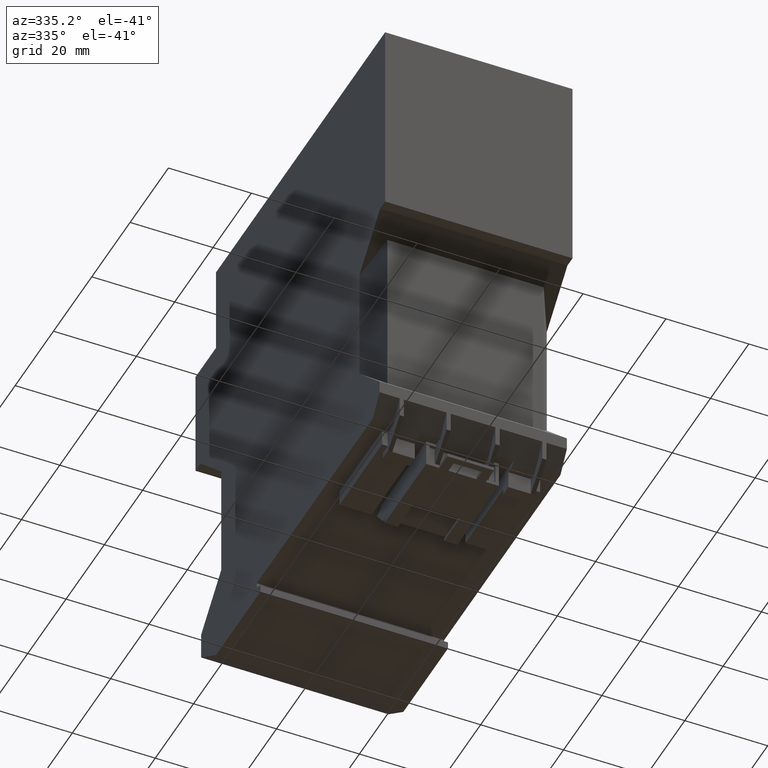
[diagram: clean part render]
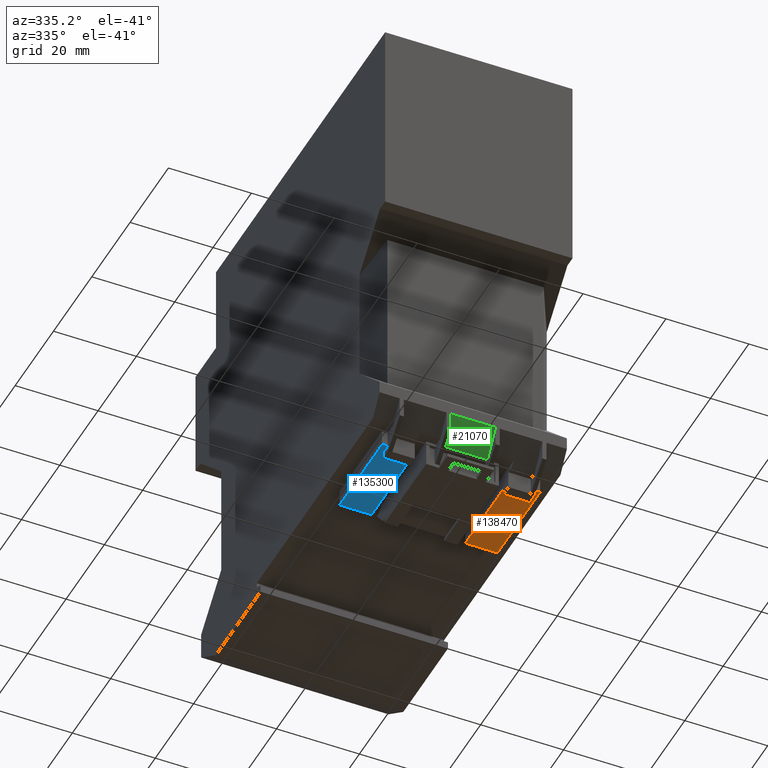
[diagram: same view with three faces highlighted in distinct colors, each labeled with its STEP entity id]
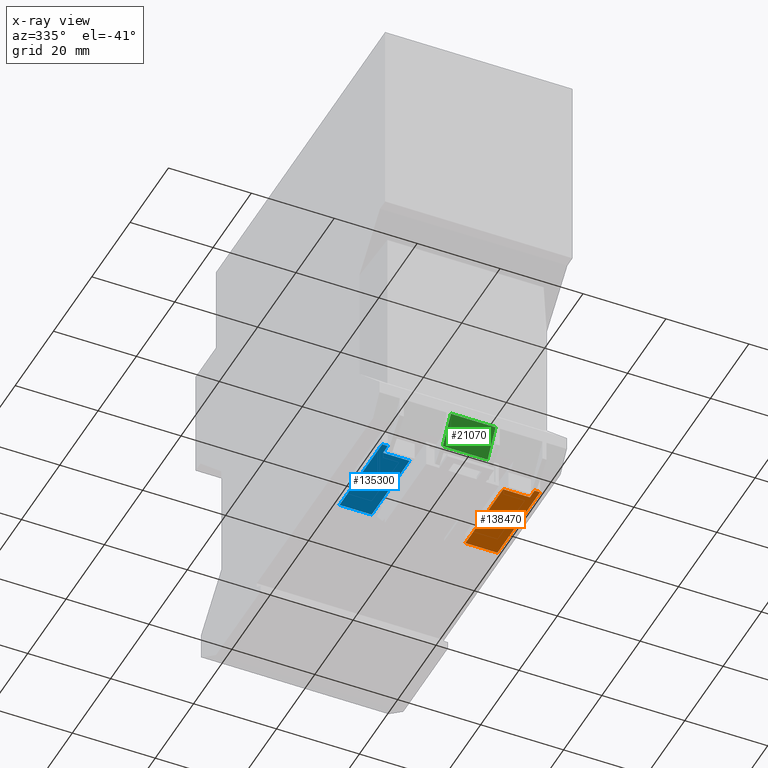
[diagram: x-ray of the same camera — body ghosted, the three highlighted faces saturated]
A machine part, auxiliary view with three faces highlighted in distinct colors.
The next image is the same camera in x-ray (body ghosted, the three faces saturated) — at least one of them is partly hidden behind the body in this view.
Their STEP definitions:

[orange] entity #138470 — the highlighted planar face has unit normal (-0, -0, 1).
#136990=CARTESIAN_POINT('',(-57.7800000000131,-4.00000000000057,29.));
#137000=VERTEX_POINT('',#136990);
#137030=CARTESIAN_POINT('',(-22.8499999999426,-4.00000000000057,29.));
#137040=DIRECTION('',(1.,-6.33944283028044E-45,-2.22044604925031E-16));
#137050=VECTOR('',#137040,1.);
#137060=LINE('',#137030,#137050);
#137070=CARTESIAN_POINT('',(-55.3000000000019,-4.00000000000057,29.));
#137080=VERTEX_POINT('',#137070);
#137090=EDGE_CURVE('',#137000,#137080,#137060,.T.);
#137690=CARTESIAN_POINT('',(-55.3000000000019,-4.00000000000057,28.));
#137700=DIRECTION('',(-2.22044604925031E-16,-5.71006247363751E-29,-1.));
#137710=VECTOR('',#137700,1.);
#137720=LINE('',#137690,#137710);
#137730=CARTESIAN_POINT('',(-55.3000000000019,-4.00000000000057,22.6));
#137740=VERTEX_POINT('',#137730);
#137750=EDGE_CURVE('',#137080,#137740,#137720,.T.);
#137960=CARTESIAN_POINT('',(-35.5000000000032,-4.00000000000057,30.35));
#137970=VERTEX_POINT('',#137960);
#138000=CARTESIAN_POINT('',(-22.8499999999426,-4.00000000000057,30.35));
#138010=DIRECTION('',(1.,1.24460305557223E-60,-1.11022302462516E-16));
#138020=VECTOR('',#138010,1.);
#138030=LINE('',#138000,#138020);
#138040=CARTESIAN_POINT('',(-57.7800000000131,-4.00000000000057,30.35));
#138050=VERTEX_POINT('',#138040);
#138060=EDGE_CURVE('',#138050,#137970,#138030,.T.);
#138170=CARTESIAN_POINT('',(-55.3000000000019,-4.00000000000057,28.));
#138180=DIRECTION('',(-6.33944283028044E-45,1.,-5.71006247363751E-29));
#138190=DIRECTION('',(1.,-6.33944283028044E-45,-2.22044604925031E-16));
#138200=AXIS2_PLACEMENT_3D('',#138170,#138180,#138190);
#138210=PLANE('',#138200);
#138220=ORIENTED_EDGE('',*,*,#137750,.T.);
#138230=ORIENTED_EDGE('',*,*,#137090,.T.);
#138240=CARTESIAN_POINT('',(-57.7800000000131,-4.00000000000057,28.));
#138250=DIRECTION('',(0.,-5.71006247363751E-29,-1.));
#138260=VECTOR('',#138250,1.);
#138270=LINE('',#138240,#138260);
#138280=EDGE_CURVE('',#138050,#137000,#138270,.T.);
#138290=ORIENTED_EDGE('',*,*,#138280,.T.);
#138300=ORIENTED_EDGE('',*,*,#138060,.F.);
#138310=CARTESIAN_POINT('',(-35.5000000000032,-4.00000000000057,28.));
#138320=DIRECTION('',(-2.22044604925031E-16,-5.71006247363751E-29,-1.));
#138330=VECTOR('',#138320,1.);
#138340=LINE('',#138310,#138330);
#138350=CARTESIAN_POINT('',(-35.5000000000032,-4.00000000000057,22.6));
#138360=VERTEX_POINT('',#138350);
#138370=EDGE_CURVE('',#137970,#138360,#138340,.T.);
#138380=ORIENTED_EDGE('',*,*,#138370,.F.);
#138390=CARTESIAN_POINT('',(-22.8499999999426,-4.00000000000057,22.6));
#138400=DIRECTION('',(-1.,-1.24460305557223E-60,1.11022302462516E-16));
#138410=VECTOR('',#138400,1.);
#138420=LINE('',#138390,#138410);
#138430=EDGE_CURVE('',#138360,#137740,#138420,.T.);
#138440=ORIENTED_EDGE('',*,*,#138430,.F.);
#138450=EDGE_LOOP('',(#138440,#138380,#138300,#138290,#138230,#138220));
#138460=FACE_OUTER_BOUND('',#138450,.T.);
#138470=ADVANCED_FACE('',(#138460),#138210,.F.);

[blue] entity #135300 — the highlighted planar face has unit normal (0, 0, -1).
#14940=CARTESIAN_POINT('',(-55.3000000000019,-4.00000000000057,-6.4));
#14950=VERTEX_POINT('',#14940);
#14980=CARTESIAN_POINT('',(-22.8499999999426,-4.00000000000057,-6.4));
#14990=DIRECTION('',(1.,0.,0.));
#15000=VECTOR('',#14990,1.);
#15010=LINE('',#14980,#15000);
#15020=CARTESIAN_POINT('',(-57.7800000000131,-4.00000000000057,-6.4));
#15030=VERTEX_POINT('',#15020);
#15040=EDGE_CURVE('',#15030,#14950,#15010,.T.);
#134420=CARTESIAN_POINT('',(-55.3000000000019,-4.00000000000057,
6.21724893790088E-15));
#134430=VERTEX_POINT('',#134420);
#134460=CARTESIAN_POINT('',(-55.3000000000019,-4.00000000000057,-5.4));
#134470=DIRECTION('',(0.,0.,1.));
#134480=VECTOR('',#134470,1.);
#134490=LINE('',#134460,#134480);
#134500=EDGE_CURVE('',#14950,#134430,#134490,.T.);
#134660=CARTESIAN_POINT('',(-57.7800000000131,-4.00000000000057,-7.75));
#134670=VERTEX_POINT('',#134660);
#134700=CARTESIAN_POINT('',(-22.8499999999426,-4.00000000000057,
-7.75000000000001));
#134710=DIRECTION('',(1.,0.,-1.11022302462516E-16));
#134720=VECTOR('',#134710,1.);
#134730=LINE('',#134700,#134720);
#134740=CARTESIAN_POINT('',(-35.5000000000032,-4.00000000000057,
-7.75000000000001));
#134750=VERTEX_POINT('',#134740);
#134760=EDGE_CURVE('',#134670,#134750,#134730,.T.);
#134930=CARTESIAN_POINT('',(-57.7800000000131,-4.00000000000057,-5.4));
#134940=DIRECTION('',(0.,0.,1.));
#134950=VECTOR('',#134940,1.);
#134960=LINE('',#134930,#134950);
#134970=EDGE_CURVE('',#134670,#15030,#134960,.T.);
#135050=CARTESIAN_POINT('',(-55.3000000000019,-4.00000000000057,-5.4));
#135060=DIRECTION('',(0.,-1.,0.));
#135070=DIRECTION('',(1.,0.,0.));
#135080=AXIS2_PLACEMENT_3D('',#135050,#135060,#135070);
#135090=PLANE('',#135080);
#135100=CARTESIAN_POINT('',(-22.8499999999426,-4.00000000000057,
2.66453525910038E-15));
#135110=DIRECTION('',(-1.,0.,1.11022302462516E-16));
#135120=VECTOR('',#135110,1.);
#135130=LINE('',#135100,#135120);
#135140=CARTESIAN_POINT('',(-35.5000000000032,-4.00000000000057,
3.95033080919437E-15));
#135150=VERTEX_POINT('',#135140);
#135160=EDGE_CURVE('',#135150,#134430,#135130,.T.);
#135170=ORIENTED_EDGE('',*,*,#135160,.T.);
#135180=CARTESIAN_POINT('',(-35.5000000000032,-4.00000000000057,-5.4));
#135190=DIRECTION('',(0.,0.,1.));
#135200=VECTOR('',#135190,1.);
#135210=LINE('',#135180,#135200);
#135220=EDGE_CURVE('',#134750,#135150,#135210,.T.);
#135230=ORIENTED_EDGE('',*,*,#135220,.T.);
#135240=ORIENTED_EDGE('',*,*,#134760,.T.);
#135250=ORIENTED_EDGE('',*,*,#134970,.F.);
#135260=ORIENTED_EDGE('',*,*,#15040,.F.);
#135270=ORIENTED_EDGE('',*,*,#134500,.F.);
#135280=EDGE_LOOP('',(#135270,#135260,#135250,#135240,#135230,#135170));
#135290=FACE_OUTER_BOUND('',#135280,.T.);
#135300=ADVANCED_FACE('',(#135290),#135090,.T.);

[green] entity #21070 — the highlighted planar face has unit normal (0, 0.8273, 0.5618).
#15340=CARTESIAN_POINT('',(-59.9007776120954,-1.20000000000039,16.7));
#15350=VERTEX_POINT('',#15340);
#15500=CARTESIAN_POINT('',(-59.9007776120954,-1.20000000000039,5.9));
#15510=VERTEX_POINT('',#15500);
#15540=CARTESIAN_POINT('',(-59.9007776120955,-1.20000000000038,0.));
#15550=DIRECTION('',(0.,0.,-1.));
#15560=VECTOR('',#15550,1.);
#15570=LINE('',#15540,#15560);
#15580=EDGE_CURVE('',#15350,#15510,#15570,.T.);
#20770=CARTESIAN_POINT('',(-64.7699284064398,5.96995359610978,11.3));
#20780=DIRECTION('',(0.827270657423099,0.561803577210713,-0.));
#20790=DIRECTION('',(-0.561803577210713,0.827270657423099,0.));
#20800=AXIS2_PLACEMENT_3D('',#20770,#20780,#20790);
#20810=PLANE('',#20800);
#20820=CARTESIAN_POINT('',(-77.0142217052413,24.,5.9));
#20830=DIRECTION('',(-0.561803577210713,0.827270657423099,0.));
#20840=VECTOR('',#20830,1.);
#20850=LINE('',#20820,#20840);
#20860=CARTESIAN_POINT('',(-64.0500000000063,4.90983993673297,5.9));
#20870=VERTEX_POINT('',#20860);
#20880=EDGE_CURVE('',#15510,#20870,#20850,.T.);
#20890=ORIENTED_EDGE('',*,*,#20880,.F.);
#20900=CARTESIAN_POINT('',(-64.0500000000063,4.90983993673297,0.));
#20910=DIRECTION('',(0.,0.,-1.));
#20920=VECTOR('',#20910,1.);
#20930=LINE('',#20900,#20920);
#20940=CARTESIAN_POINT('',(-64.0500000000063,4.90983993673296,16.7));
#20950=VERTEX_POINT('',#20940);
#20960=EDGE_CURVE('',#20950,#20870,#20930,.T.);
#20970=ORIENTED_EDGE('',*,*,#20960,.T.);
#20980=CARTESIAN_POINT('',(-77.0142217052413,24.,16.7));
#20990=DIRECTION('',(0.561803577210713,-0.827270657423099,-0.));
#21000=VECTOR('',#20990,1.);
#21010=LINE('',#20980,#21000);
#21020=EDGE_CURVE('',#20950,#15350,#21010,.T.);
#21030=ORIENTED_EDGE('',*,*,#21020,.F.);
#21040=ORIENTED_EDGE('',*,*,#15580,.F.);
#21050=EDGE_LOOP('',(#21040,#21030,#20970,#20890));
#21060=FACE_OUTER_BOUND('',#21050,.T.);
#21070=ADVANCED_FACE('',(#21060),#20810,.F.);